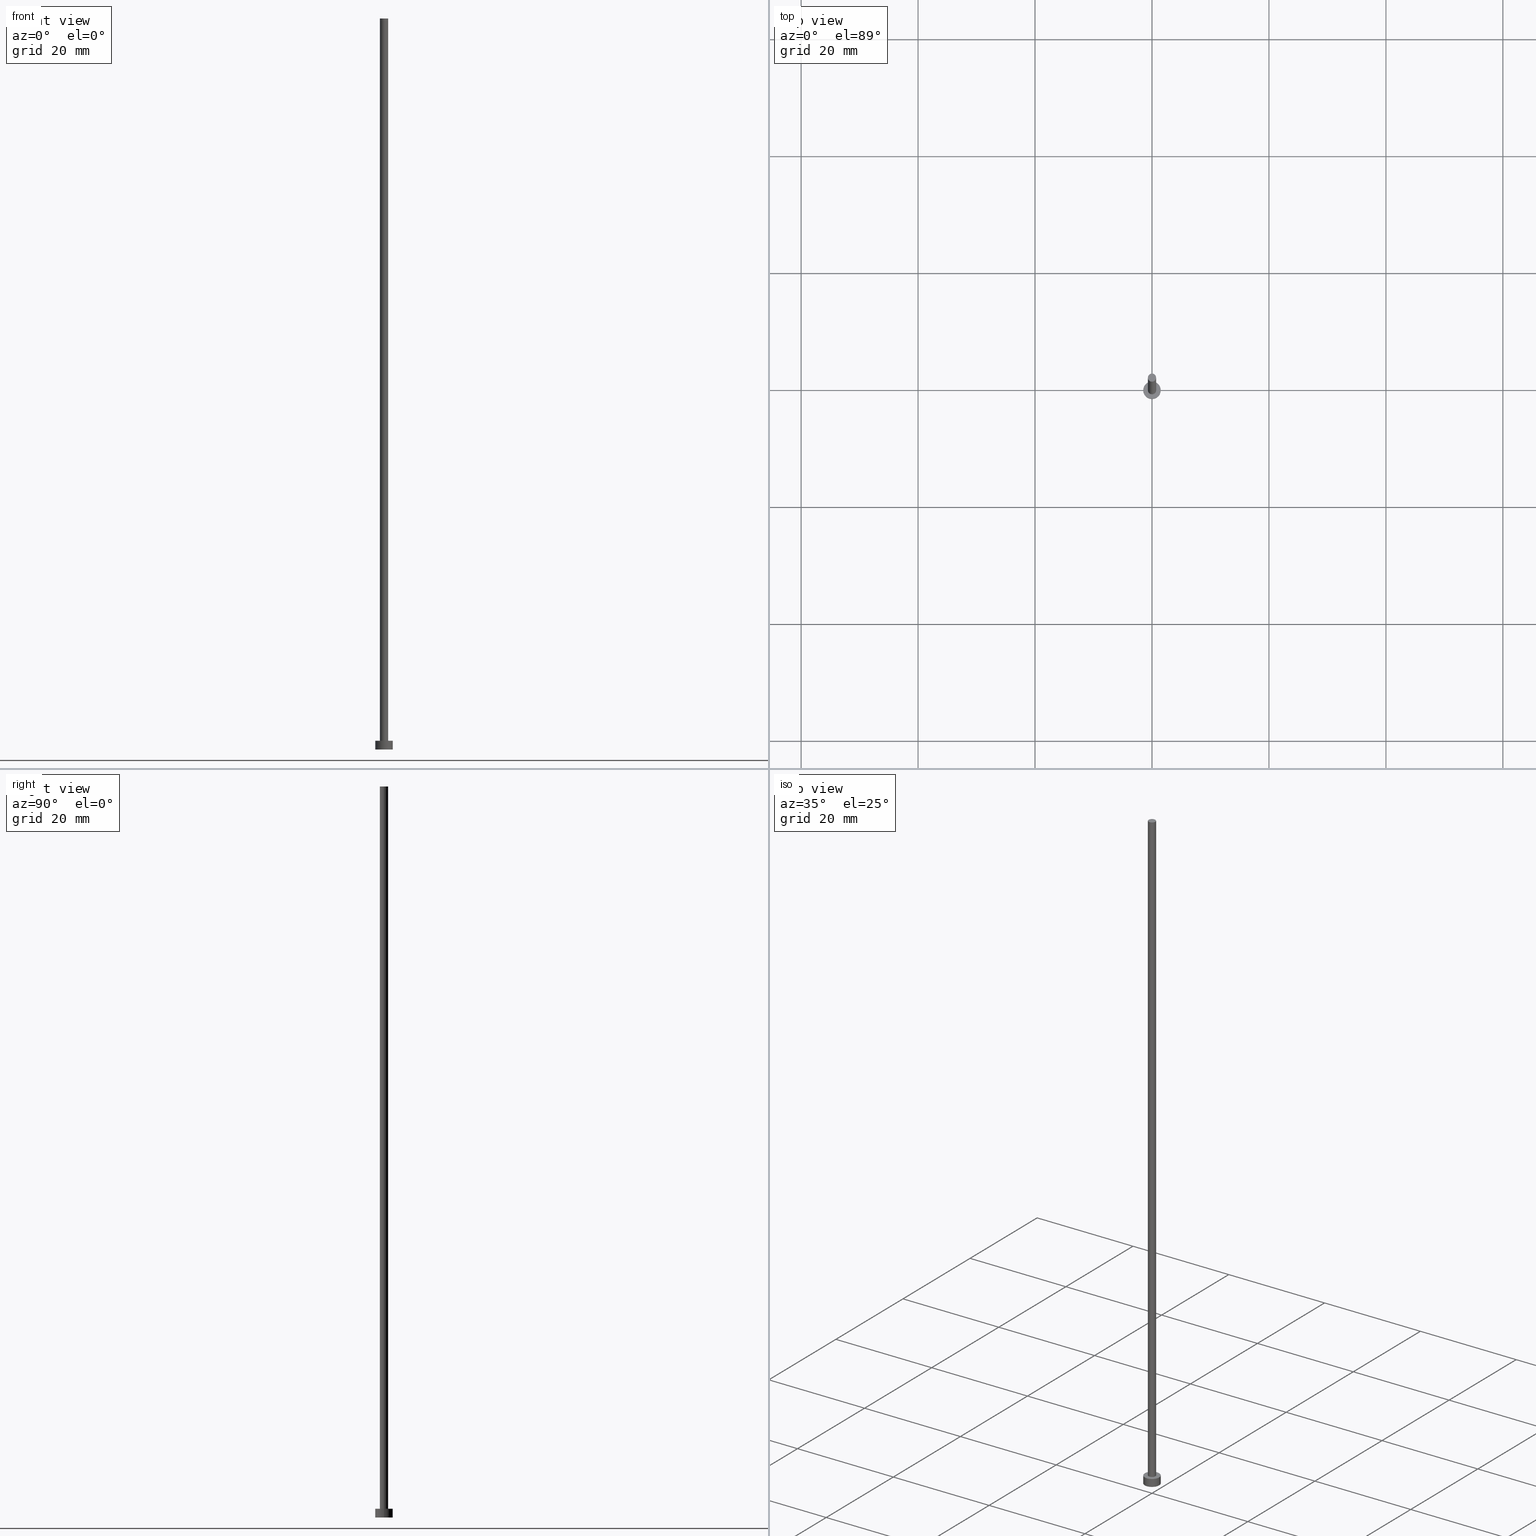
[diagram: canonical four-view strip — front | top / right | iso, engineering-drawing reading convention]
A machine part, canonical four-view strip (front | top / right | iso — engineering-drawing reading convention). The complete STEP part file that produces these views, byte-faithful:
ISO-10303-21;
HEADER;
FILE_DESCRIPTION (( 'STEP AP203' ),
    '1' );
FILE_NAME ('e911.STEP',
    '2023-02-12T12:57:55',
    ( '' ),
    ( '' ),
    'SwSTEP 2.0',
    'SolidWorks 2019',
    '' );
FILE_SCHEMA (( 'CONFIG_CONTROL_DESIGN' ));
ENDSEC;

DATA;
#1 = APPROVAL_DATE_TIME ( #193, #83 ) ;
#2 = EDGE_LOOP ( 'NONE', ( #57, #66 ) ) ;
#3 = APPROVAL_STATUS ( 'not_yet_approved' ) ;
#4 = EDGE_CURVE ( 'NONE', #30, #217, #117, .T. ) ;
#5 = APPLICATION_PROTOCOL_DEFINITION ( 'international standard', 'config_control_design', 1994, #90 ) ;
#6 = ORIENTED_EDGE ( 'NONE', *, *, #107, .T. ) ;
#7 = APPROVAL ( #166, 'NEUR�EN�' ) ;
#8 = PERSON_AND_ORGANIZATION_ROLE ( 'creator' ) ;
#9 = APPROVAL_PERSON_ORGANIZATION ( #43, #7, #241 ) ;
#10 = DIRECTION ( 'NONE',  ( -1.000000000000000000, 0.000000000000000000, 0.000000000000000000 ) ) ;
#11 = DIRECTION ( 'NONE',  ( 0.000000000000000000, 0.000000000000000000, 1.000000000000000000 ) ) ;
#12 = ORIENTED_EDGE ( 'NONE', *, *, #73, .F. ) ;
#13 = CARTESIAN_POINT ( 'NONE',  ( 1.500000000000000222, 1.836970198721030181E-16, 0.000000000000000000 ) ) ;
#14 = CARTESIAN_POINT ( 'NONE',  ( 0.000000000000000000, 0.000000000000000000, 1.500000000000000000 ) ) ;
#15 = AXIS2_PLACEMENT_3D ( 'NONE', #187, #122, #27 ) ;
#16 = CC_DESIGN_PERSON_AND_ORGANIZATION_ASSIGNMENT ( #67, #104, ( #35 ) ) ;
#17 = DIRECTION ( 'NONE',  ( -1.000000000000000000, 0.000000000000000000, 0.000000000000000000 ) ) ;
#18 = AXIS2_PLACEMENT_3D ( 'NONE', #254, #74, #150 ) ;
#19 = CYLINDRICAL_SURFACE ( 'NONE', #54, 1.500000000000000222 ) ;
#20 = ORIENTED_EDGE ( 'NONE', *, *, #152, .T. ) ;
#21 = CC_DESIGN_APPROVAL ( #7, ( #202 ) ) ;
#22 = ORIENTED_EDGE ( 'NONE', *, *, #168, .F. ) ;
#23 = CARTESIAN_POINT ( 'NONE',  ( 0.000000000000000000, 0.000000000000000000, 0.000000000000000000 ) ) ;
#24 = FACE_OUTER_BOUND ( 'NONE', #233, .T. ) ;
#25 = APPROVAL_DATE_TIME ( #198, #206 ) ;
#26 = CIRCLE ( 'NONE', #15, 1.500000000000000222 ) ;
#27 = DIRECTION ( 'NONE',  ( 1.000000000000000000, 0.000000000000000000, 0.000000000000000000 ) ) ;
#28 = ADVANCED_FACE ( 'NONE', ( #24 ), #106, .F. ) ;
#29 = ORIENTED_EDGE ( 'NONE', *, *, #45, .T. ) ;
#30 = VERTEX_POINT ( 'NONE', #71 ) ;
#31 = ADVANCED_FACE ( 'NONE', ( #216 ), #242, .T. ) ;
#32 = CARTESIAN_POINT ( 'NONE',  ( -0.6999999999999999556, 0.000000000000000000, 1.500000000000000000 ) ) ;
#33 = CIRCLE ( 'NONE', #134, 1.500000000000000222 ) ;
#34 = DIRECTION ( 'NONE',  ( -0.000000000000000000, -0.000000000000000000, -1.000000000000000000 ) ) ;
#35 = PRODUCT ( 'e911', 'e911', '', ( #131 ) ) ;
#36 = EDGE_CURVE ( 'NONE', #217, #80, #38, .T. ) ;
#37 = PERSON_AND_ORGANIZATION ( #234, #249 ) ;
#38 = CIRCLE ( 'NONE', #182, 1.500000000000000222 ) ;
#39 = ORIENTED_EDGE ( 'NONE', *, *, #107, .F. ) ;
#40 = EDGE_LOOP ( 'NONE', ( #6, #238 ) ) ;
#41 = CARTESIAN_POINT ( 'NONE',  ( 0.000000000000000000, 0.000000000000000000, 1.500000000000000000 ) ) ;
#42 = FACE_OUTER_BOUND ( 'NONE', #2, .T. ) ;
#43 = PERSON_AND_ORGANIZATION ( #234, #249 ) ;
#44 = ORIENTED_EDGE ( 'NONE', *, *, #59, .F. ) ;
#45 = EDGE_CURVE ( 'NONE', #80, #217, #26, .T. ) ;
#46 = CC_DESIGN_APPROVAL ( #206, ( #159 ) ) ;
#47 = DATE_TIME_ROLE ( 'creation_date' ) ;
#48 = ORIENTED_EDGE ( 'NONE', *, *, #36, .F. ) ;
#49 = EDGE_LOOP ( 'NONE', ( #22, #12, #55, #213 ) ) ;
#50 = PLANE ( 'NONE',  #18 ) ;
#51 = DIRECTION ( 'NONE',  ( 1.000000000000000000, 0.000000000000000000, 0.000000000000000000 ) ) ;
#52 = DIRECTION ( 'NONE',  ( -0.000000000000000000, -0.000000000000000000, -1.000000000000000000 ) ) ;
#53 = DIRECTION ( 'NONE',  ( 1.000000000000000000, 0.000000000000000000, 0.000000000000000000 ) ) ;
#54 = AXIS2_PLACEMENT_3D ( 'NONE', #251, #109, #17 ) ;
#55 = ORIENTED_EDGE ( 'NONE', *, *, #4, .T. ) ;
#56 = AXIS2_PLACEMENT_3D ( 'NONE', #41, #105, #186 ) ;
#57 = ORIENTED_EDGE ( 'NONE', *, *, #73, .T. ) ;
#58 = CIRCLE ( 'NONE', #123, 0.6999999999999999556 ) ;
#59 = EDGE_CURVE ( 'NONE', #84, #99, #172, .T. ) ;
#60 = VECTOR ( 'NONE', #34, 1000.000000000000000 ) ;
#61 = APPLICATION_CONTEXT ( 'configuration controlled 3d designs of mechanical parts and assemblies' ) ;
#62 = EDGE_CURVE ( 'NONE', #115, #179, #200, .T. ) ;
#63 = DIRECTION ( 'NONE',  ( -0.000000000000000000, -0.000000000000000000, -1.000000000000000000 ) ) ;
#64 = AXIS2_PLACEMENT_3D ( 'NONE', #23, #235, #86 ) ;
#65 = VERTEX_POINT ( 'NONE', #167 ) ;
#66 = ORIENTED_EDGE ( 'NONE', *, *, #103, .T. ) ;
#67 = PERSON_AND_ORGANIZATION ( #234, #249 ) ;
#68 = CARTESIAN_POINT ( 'NONE',  ( 0.000000000000000000, 0.000000000000000000, 1.500000000000000000 ) ) ;
#69 = AXIS2_PLACEMENT_3D ( 'NONE', #68, #181, #221 ) ;
#70 = LOCAL_TIME ( 13, 57, 55.00000000000000000, #137 ) ;
#71 = CARTESIAN_POINT ( 'NONE',  ( -1.500000000000000222, 0.000000000000000000, 1.500000000000000000 ) ) ;
#72 = DIRECTION ( 'NONE',  ( 0.000000000000000000, 0.000000000000000000, 1.000000000000000000 ) ) ;
#73 = EDGE_CURVE ( 'NONE', #30, #65, #232, .T. ) ;
#74 = DIRECTION ( 'NONE',  ( 0.000000000000000000, 0.000000000000000000, 1.000000000000000000 ) ) ;
#75 = ADVANCED_FACE ( 'NONE', ( #169, #42 ), #244, .T. ) ;
#76 = UNCERTAINTY_MEASURE_WITH_UNIT (LENGTH_MEASURE( 1.000000000000000082E-05 ), #130, 'distance_accuracy_value', 'NONE');
#77 = CARTESIAN_POINT ( 'NONE',  ( -1.500000000000000222, 0.000000000000000000, 0.000000000000000000 ) ) ;
#78 = PERSON_AND_ORGANIZATION ( #234, #249 ) ;
#79 = SHAPE_DEFINITION_REPRESENTATION ( #212, #147 ) ;
#80 = VERTEX_POINT ( 'NONE', #13 ) ;
#81 = ADVANCED_FACE ( 'NONE', ( #92 ), #85, .T. ) ;
#82 = AXIS2_PLACEMENT_3D ( 'NONE', #153, #52, #192 ) ;
#83 = APPROVAL ( #3, 'NEUR�EN�' ) ;
#84 = VERTEX_POINT ( 'NONE', #32 ) ;
#85 = CYLINDRICAL_SURFACE ( 'NONE', #243, 0.6999999999999999556 ) ;
#86 = DIRECTION ( 'NONE',  ( 1.000000000000000000, 0.000000000000000000, 0.000000000000000000 ) ) ;
#87 = DIRECTION ( 'NONE',  ( 0.000000000000000000, 0.000000000000000000, 1.000000000000000000 ) ) ;
#88 = DIRECTION ( 'NONE',  ( 1.000000000000000000, 0.000000000000000000, 0.000000000000000000 ) ) ;
#89 = CC_DESIGN_DATE_AND_TIME_ASSIGNMENT ( #185, #47, ( #159 ) ) ;
#90 = APPLICATION_CONTEXT ( 'configuration controlled 3d designs of mechanical parts and assemblies' ) ;
#91 = CARTESIAN_POINT ( 'NONE',  ( 0.000000000000000000, 0.000000000000000000, 125.0000000000000000 ) ) ;
#92 = FACE_OUTER_BOUND ( 'NONE', #231, .T. ) ;
#93 = DIRECTION ( 'NONE',  ( -1.000000000000000000, 0.000000000000000000, 0.000000000000000000 ) ) ;
#94 = LOCAL_TIME ( 13, 57, 55.00000000000000000, #146 ) ;
#95 = CYLINDRICAL_SURFACE ( 'NONE', #82, 0.6999999999999999556 ) ;
#96 = DATE_TIME_ROLE ( 'classification_date' ) ;
#97 = CARTESIAN_POINT ( 'NONE',  ( 0.000000000000000000, 0.000000000000000000, 1.500000000000000000 ) ) ;
#98 = DIRECTION ( 'NONE',  ( 0.000000000000000000, 0.000000000000000000, 1.000000000000000000 ) ) ;
#99 = VERTEX_POINT ( 'NONE', #151 ) ;
#100 = ORIENTED_EDGE ( 'NONE', *, *, #120, .F. ) ;
#101 = CARTESIAN_POINT ( 'NONE',  ( -1.500000000000000222, 0.000000000000000000, 1.500000000000000000 ) ) ;
#102 = PERSON_AND_ORGANIZATION ( #234, #249 ) ;
#103 = EDGE_CURVE ( 'NONE', #65, #30, #33, .T. ) ;
#104 = PERSON_AND_ORGANIZATION_ROLE ( 'design_owner' ) ;
#105 = DIRECTION ( 'NONE',  ( 0.000000000000000000, 0.000000000000000000, 1.000000000000000000 ) ) ;
#106 = PLANE ( 'NONE',  #183 ) ;
#107 = EDGE_CURVE ( 'NONE', #179, #115, #222, .T. ) ;
#108 = APPROVAL_PERSON_ORGANIZATION ( #157, #83, #211 ) ;
#109 = DIRECTION ( 'NONE',  ( -0.000000000000000000, -0.000000000000000000, -1.000000000000000000 ) ) ;
#110 = CARTESIAN_POINT ( 'NONE',  ( -0.6999999999999999556, 0.000000000000000000, 125.0000000000000000 ) ) ;
#111 = CLOSED_SHELL ( 'NONE', ( #246, #31, #177, #75, #28, #81, #138 ) ) ;
#112 = CALENDAR_DATE ( 2023, 12, 2 ) ;
#113 = FACE_OUTER_BOUND ( 'NONE', #49, .T. ) ;
#114 = CALENDAR_DATE ( 2023, 12, 2 ) ;
#115 = VERTEX_POINT ( 'NONE', #224 ) ;
#116 = AXIS2_PLACEMENT_3D ( 'NONE', #133, #72, #53 ) ;
#117 = LINE ( 'NONE', #101, #225 ) ;
#118 = APPLICATION_PROTOCOL_DEFINITION ( 'international standard', 'config_control_design', 1994, #61 ) ;
#119 = DIRECTION ( 'NONE',  ( 0.000000000000000000, 0.000000000000000000, 1.000000000000000000 ) ) ;
#120 = EDGE_CURVE ( 'NONE', #115, #99, #227, .T. ) ;
#121 = AXIS2_PLACEMENT_3D ( 'NONE', #197, #119, #223 ) ;
#122 = DIRECTION ( 'NONE',  ( 0.000000000000000000, 0.000000000000000000, 1.000000000000000000 ) ) ;
#123 = AXIS2_PLACEMENT_3D ( 'NONE', #97, #98, #51 ) ;
#124 = CALENDAR_DATE ( 2023, 12, 2 ) ;
#125 = EDGE_LOOP ( 'NONE', ( #44, #201 ) ) ;
#126 = CC_DESIGN_PERSON_AND_ORGANIZATION_ASSIGNMENT ( #78, #229, ( #135 ) ) ;
#127 = ORIENTED_EDGE ( 'NONE', *, *, #45, .F. ) ;
#128 = CARTESIAN_POINT ( 'NONE',  ( -0.6999999999999999556, 0.000000000000000000, 125.0000000000000000 ) ) ;
#129 = LOCAL_TIME ( 13, 57, 55.00000000000000000, #176 ) ;
#130 =( LENGTH_UNIT ( ) NAMED_UNIT ( * ) SI_UNIT ( .MILLI., .METRE. ) );
#131 = MECHANICAL_CONTEXT ( 'NONE', #90, 'mechanical' ) ;
#132 = CARTESIAN_POINT ( 'NONE',  ( 0.6999999999999999556, 8.572527594031471957E-17, 125.0000000000000000 ) ) ;
#133 = CARTESIAN_POINT ( 'NONE',  ( 0.000000000000000000, 0.000000000000000000, 125.0000000000000000 ) ) ;
#134 = AXIS2_PLACEMENT_3D ( 'NONE', #14, #190, #171 ) ;
#135 = SECURITY_CLASSIFICATION ( '', '', #178 ) ;
#136 = DIRECTION ( 'NONE',  ( -0.000000000000000000, -0.000000000000000000, -1.000000000000000000 ) ) ;
#137 = COORDINATED_UNIVERSAL_TIME_OFFSET ( 1, 0, .AHEAD. ) ;
#138 = ADVANCED_FACE ( 'NONE', ( #207 ), #50, .T. ) ;
#139 = EDGE_LOOP ( 'NONE', ( #204, #160, #194, #184 ) ) ;
#140 = CARTESIAN_POINT ( 'NONE',  ( 0.000000000000000000, 0.000000000000000000, 0.000000000000000000 ) ) ;
#141 = CC_DESIGN_SECURITY_CLASSIFICATION ( #135, ( #202 ) ) ;
#142 = CALENDAR_DATE ( 2023, 12, 2 ) ;
#143 = DIRECTION ( 'NONE',  ( 0.000000000000000000, 0.000000000000000000, 1.000000000000000000 ) ) ;
#144 = CC_DESIGN_PERSON_AND_ORGANIZATION_ASSIGNMENT ( #102, #8, ( #159 ) ) ;
#145 = DIRECTION ( 'NONE',  ( 1.000000000000000000, 0.000000000000000000, -0.000000000000000000 ) ) ;
#146 = COORDINATED_UNIVERSAL_TIME_OFFSET ( 1, 0, .AHEAD. ) ;
#147 = ADVANCED_BREP_SHAPE_REPRESENTATION ( 'e911', ( #161, #64 ), #158 ) ;
#148 = CC_DESIGN_PERSON_AND_ORGANIZATION_ASSIGNMENT ( #228, #195, ( #202 ) ) ;
#149 = CARTESIAN_POINT ( 'NONE',  ( 0.000000000000000000, 0.000000000000000000, 1.500000000000000000 ) ) ;
#150 = DIRECTION ( 'NONE',  ( 1.000000000000000000, 0.000000000000000000, -0.000000000000000000 ) ) ;
#151 = CARTESIAN_POINT ( 'NONE',  ( 0.6999999999999999556, 8.572527594031471957E-17, 1.500000000000000000 ) ) ;
#152 = EDGE_CURVE ( 'NONE', #179, #84, #175, .T. ) ;
#153 = CARTESIAN_POINT ( 'NONE',  ( 0.000000000000000000, 0.000000000000000000, 125.0000000000000000 ) ) ;
#154 = LINE ( 'NONE', #209, #60 ) ;
#155 = CC_DESIGN_DATE_AND_TIME_ASSIGNMENT ( #210, #96, ( #135 ) ) ;
#156 = ORIENTED_EDGE ( 'NONE', *, *, #168, .T. ) ;
#157 = PERSON_AND_ORGANIZATION ( #234, #249 ) ;
#158 =( GEOMETRIC_REPRESENTATION_CONTEXT ( 3 ) GLOBAL_UNCERTAINTY_ASSIGNED_CONTEXT ( ( #76 ) ) GLOBAL_UNIT_ASSIGNED_CONTEXT ( ( #130, #189, #173 ) ) REPRESENTATION_CONTEXT ( 'NONE', 'WORKASPACE' ) );
#159 = PRODUCT_DEFINITION ( 'NEZN�M�', '', #202, #205 ) ;
#160 = ORIENTED_EDGE ( 'NONE', *, *, #120, .T. ) ;
#161 = MANIFOLD_SOLID_BREP ( 'P�idat vysunut�m3', #111 ) ;
#162 = PERSON_AND_ORGANIZATION ( #234, #249 ) ;
#163 = EDGE_LOOP ( 'NONE', ( #215, #156, #29, #236 ) ) ;
#164 = COORDINATED_UNIVERSAL_TIME_OFFSET ( 1, 0, .AHEAD. ) ;
#165 = DIRECTION ( 'NONE',  ( 1.000000000000000000, 0.000000000000000000, 0.000000000000000000 ) ) ;
#166 = APPROVAL_STATUS ( 'not_yet_approved' ) ;
#167 = CARTESIAN_POINT ( 'NONE',  ( 1.500000000000000222, 1.836970198721030181E-16, 1.500000000000000000 ) ) ;
#168 = EDGE_CURVE ( 'NONE', #65, #80, #154, .T. ) ;
#169 = FACE_BOUND ( 'NONE', #125, .T. ) ;
#170 = CARTESIAN_POINT ( 'NONE',  ( 0.000000000000000000, 0.000000000000000000, 125.0000000000000000 ) ) ;
#171 = DIRECTION ( 'NONE',  ( 1.000000000000000000, 0.000000000000000000, 0.000000000000000000 ) ) ;
#172 = CIRCLE ( 'NONE', #56, 0.6999999999999999556 ) ;
#173 =( NAMED_UNIT ( * ) SI_UNIT ( $, .STERADIAN. ) SOLID_ANGLE_UNIT ( ) );
#174 = LOCAL_TIME ( 13, 57, 55.00000000000000000, #220 ) ;
#175 = LINE ( 'NONE', #128, #214 ) ;
#176 = COORDINATED_UNIVERSAL_TIME_OFFSET ( 1, 0, .AHEAD. ) ;
#177 = ADVANCED_FACE ( 'NONE', ( #113 ), #19, .T. ) ;
#178 = SECURITY_CLASSIFICATION_LEVEL ( 'unclassified' ) ;
#179 = VERTEX_POINT ( 'NONE', #110 ) ;
#180 = APPROVAL_STATUS ( 'not_yet_approved' ) ;
#181 = DIRECTION ( 'NONE',  ( 0.000000000000000000, 0.000000000000000000, 1.000000000000000000 ) ) ;
#182 = AXIS2_PLACEMENT_3D ( 'NONE', #140, #87, #165 ) ;
#183 = AXIS2_PLACEMENT_3D ( 'NONE', #203, #143, #145 ) ;
#184 = ORIENTED_EDGE ( 'NONE', *, *, #152, .F. ) ;
#185 = DATE_AND_TIME ( #239, #245 ) ;
#186 = DIRECTION ( 'NONE',  ( 1.000000000000000000, 0.000000000000000000, 0.000000000000000000 ) ) ;
#187 = CARTESIAN_POINT ( 'NONE',  ( 0.000000000000000000, 0.000000000000000000, 0.000000000000000000 ) ) ;
#188 = DIRECTION ( 'NONE',  ( -0.000000000000000000, -0.000000000000000000, -1.000000000000000000 ) ) ;
#189 =( NAMED_UNIT ( * ) PLANE_ANGLE_UNIT ( ) SI_UNIT ( $, .RADIAN. ) );
#190 = DIRECTION ( 'NONE',  ( 0.000000000000000000, 0.000000000000000000, 1.000000000000000000 ) ) ;
#191 = CC_DESIGN_PERSON_AND_ORGANIZATION_ASSIGNMENT ( #37, #250, ( #202 ) ) ;
#192 = DIRECTION ( 'NONE',  ( -1.000000000000000000, 0.000000000000000000, 0.000000000000000000 ) ) ;
#193 = DATE_AND_TIME ( #114, #129 ) ;
#194 = ORIENTED_EDGE ( 'NONE', *, *, #252, .T. ) ;
#195 = PERSON_AND_ORGANIZATION_ROLE ( 'design_supplier' ) ;
#196 = APPROVAL_PERSON_ORGANIZATION ( #162, #206, #237 ) ;
#197 = CARTESIAN_POINT ( 'NONE',  ( 0.000000000000000000, 0.000000000000000000, 1.500000000000000000 ) ) ;
#198 = DATE_AND_TIME ( #142, #174 ) ;
#199 = ORIENTED_EDGE ( 'NONE', *, *, #59, .T. ) ;
#200 = CIRCLE ( 'NONE', #219, 0.6999999999999999556 ) ;
#201 = ORIENTED_EDGE ( 'NONE', *, *, #252, .F. ) ;
#202 = PRODUCT_DEFINITION_FORMATION_WITH_SPECIFIED_SOURCE ( 'LIBOVOLN�', '', #35, .NOT_KNOWN. ) ;
#203 = CARTESIAN_POINT ( 'NONE',  ( 0.000000000000000000, 0.000000000000000000, 0.000000000000000000 ) ) ;
#204 = ORIENTED_EDGE ( 'NONE', *, *, #62, .F. ) ;
#205 = DESIGN_CONTEXT ( 'detailed design', #61, 'design' ) ;
#206 = APPROVAL ( #180, 'NEUR�EN�' ) ;
#207 = FACE_OUTER_BOUND ( 'NONE', #40, .T. ) ;
#208 = VECTOR ( 'NONE', #247, 1000.000000000000000 ) ;
#209 = CARTESIAN_POINT ( 'NONE',  ( 1.500000000000000222, 1.836970198721030181E-16, 1.500000000000000000 ) ) ;
#210 = DATE_AND_TIME ( #112, #70 ) ;
#211 = APPROVAL_ROLE ( '' ) ;
#212 = PRODUCT_DEFINITION_SHAPE ( 'NONE', 'NONE',  #159 ) ;
#213 = ORIENTED_EDGE ( 'NONE', *, *, #36, .T. ) ;
#214 = VECTOR ( 'NONE', #136, 1000.000000000000000 ) ;
#215 = ORIENTED_EDGE ( 'NONE', *, *, #103, .F. ) ;
#216 = FACE_OUTER_BOUND ( 'NONE', #163, .T. ) ;
#217 = VERTEX_POINT ( 'NONE', #77 ) ;
#218 = PRODUCT_RELATED_PRODUCT_CATEGORY ( 'detail', '', ( #35 ) ) ;
#219 = AXIS2_PLACEMENT_3D ( 'NONE', #91, #11, #88 ) ;
#220 = COORDINATED_UNIVERSAL_TIME_OFFSET ( 1, 0, .AHEAD. ) ;
#221 = DIRECTION ( 'NONE',  ( 1.000000000000000000, 0.000000000000000000, 0.000000000000000000 ) ) ;
#222 = CIRCLE ( 'NONE', #116, 0.6999999999999999556 ) ;
#223 = DIRECTION ( 'NONE',  ( 1.000000000000000000, 0.000000000000000000, -0.000000000000000000 ) ) ;
#224 = CARTESIAN_POINT ( 'NONE',  ( 0.6999999999999999556, 8.572527594031471957E-17, 125.0000000000000000 ) ) ;
#225 = VECTOR ( 'NONE', #240, 1000.000000000000000 ) ;
#226 = FACE_OUTER_BOUND ( 'NONE', #139, .T. ) ;
#227 = LINE ( 'NONE', #132, #208 ) ;
#228 = PERSON_AND_ORGANIZATION ( #234, #249 ) ;
#229 = PERSON_AND_ORGANIZATION_ROLE ( 'classification_officer' ) ;
#230 = CC_DESIGN_APPROVAL ( #83, ( #135 ) ) ;
#231 = EDGE_LOOP ( 'NONE', ( #100, #39, #20, #199 ) ) ;
#232 = CIRCLE ( 'NONE', #69, 1.500000000000000222 ) ;
#233 = EDGE_LOOP ( 'NONE', ( #48, #127 ) ) ;
#234 = PERSON ( 'NEUR�EN�', 'NEUR�EN�', 'NEUR�EN�', ('NEUR�EN�'), ('NEUR�EN�'), ('NEUR�EN�') ) ;
#235 = DIRECTION ( 'NONE',  ( 0.000000000000000000, 0.000000000000000000, 1.000000000000000000 ) ) ;
#236 = ORIENTED_EDGE ( 'NONE', *, *, #4, .F. ) ;
#237 = APPROVAL_ROLE ( '' ) ;
#238 = ORIENTED_EDGE ( 'NONE', *, *, #62, .T. ) ;
#239 = CALENDAR_DATE ( 2023, 12, 2 ) ;
#240 = DIRECTION ( 'NONE',  ( -0.000000000000000000, -0.000000000000000000, -1.000000000000000000 ) ) ;
#241 = APPROVAL_ROLE ( '' ) ;
#242 = CYLINDRICAL_SURFACE ( 'NONE', #248, 1.500000000000000222 ) ;
#243 = AXIS2_PLACEMENT_3D ( 'NONE', #170, #63, #93 ) ;
#244 = PLANE ( 'NONE',  #121 ) ;
#245 = LOCAL_TIME ( 13, 57, 55.00000000000000000, #164 ) ;
#246 = ADVANCED_FACE ( 'NONE', ( #226 ), #95, .T. ) ;
#247 = DIRECTION ( 'NONE',  ( -0.000000000000000000, -0.000000000000000000, -1.000000000000000000 ) ) ;
#248 = AXIS2_PLACEMENT_3D ( 'NONE', #149, #188, #10 ) ;
#249 = ORGANIZATION ( 'NEUR�EN�', 'NEUR�EN�', '' ) ;
#250 = PERSON_AND_ORGANIZATION_ROLE ( 'creator' ) ;
#251 = CARTESIAN_POINT ( 'NONE',  ( 0.000000000000000000, 0.000000000000000000, 1.500000000000000000 ) ) ;
#252 = EDGE_CURVE ( 'NONE', #99, #84, #58, .T. ) ;
#253 = APPROVAL_DATE_TIME ( #255, #7 ) ;
#254 = CARTESIAN_POINT ( 'NONE',  ( 0.000000000000000000, 0.000000000000000000, 125.0000000000000000 ) ) ;
#255 = DATE_AND_TIME ( #124, #94 ) ;
ENDSEC;
END-ISO-10303-21;
